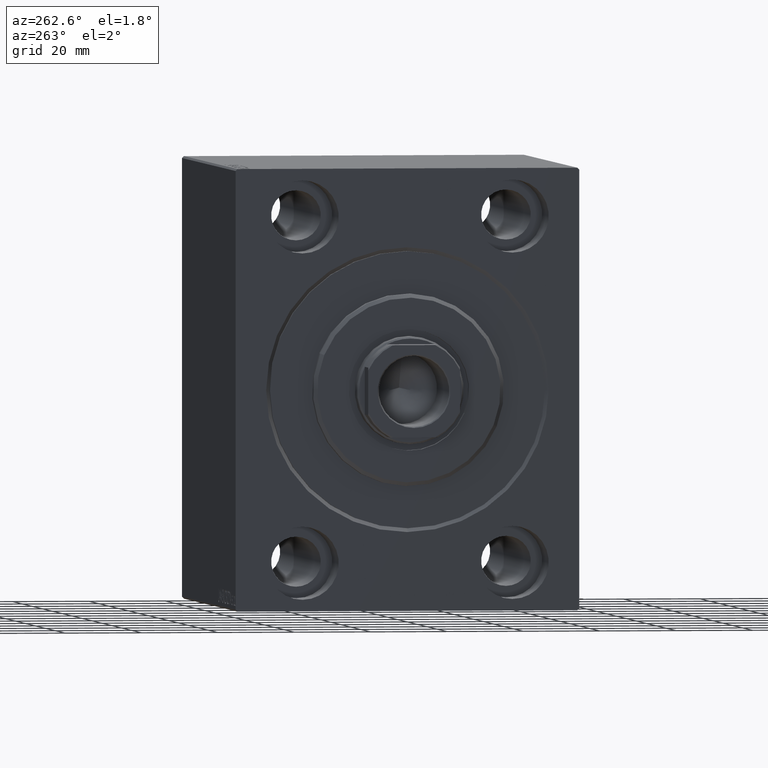
[diagram: clean part render]
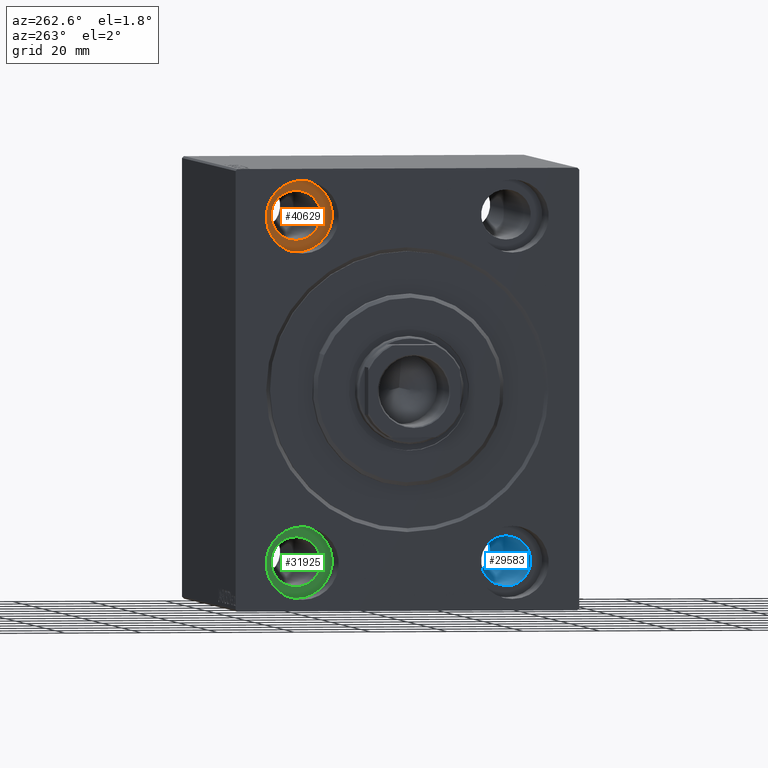
[diagram: same view with three faces highlighted in distinct colors, each labeled with its STEP entity id]
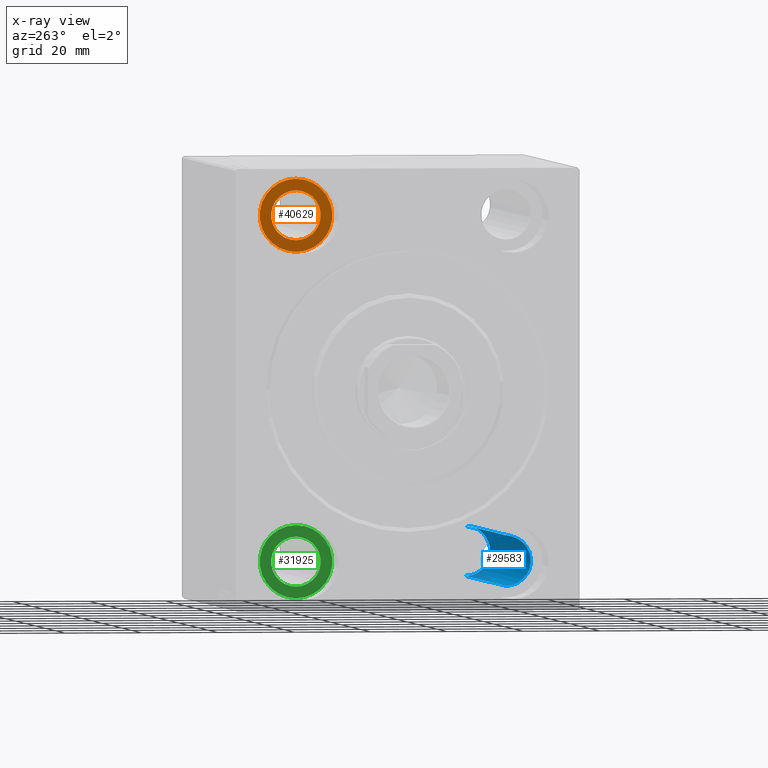
[diagram: x-ray of the same camera — body ghosted, the three highlighted faces saturated]
A machine part, auxiliary view with three faces highlighted in distinct colors.
The next image is the same camera in x-ray (body ghosted, the three faces saturated) — at least one of them is partly hidden behind the body in this view.
Their STEP definitions:

[orange] entity #40629 — the highlighted planar face has unit normal (-1, 0, 0).
#1296 = FACE_BOUND ( 'NONE', #27066, .T. ) ;
#1957 = DIRECTION ( 'NONE',  ( 0.000000000000000000, 0.000000000000000000, 1.000000000000000000 ) ) ;
#2302 = CARTESIAN_POINT ( 'NONE',  ( 12.99999999999999822, 27.50000000000001066, 38.50000000000000711 ) ) ;
#2378 = ORIENTED_EDGE ( 'NONE', *, *, #20117, .T. ) ;
#3224 = DIRECTION ( 'NONE',  ( 0.000000000000000000, 0.000000000000000000, 1.000000000000000000 ) ) ;
#3572 = ORIENTED_EDGE ( 'NONE', *, *, #24990, .F. ) ;
#5092 = EDGE_CURVE ( 'NONE', #15258, #36710, #12760, .T. ) ;
#5297 = PLANE ( 'NONE',  #34083 ) ;
#8473 = DIRECTION ( 'NONE',  ( 0.000000000000000000, 0.000000000000000000, 1.000000000000000000 ) ) ;
#9696 = DIRECTION ( 'NONE',  ( 0.000000000000000000, 0.000000000000000000, 1.000000000000000000 ) ) ;
#9836 = DIRECTION ( 'NONE',  ( 0.000000000000000000, 0.000000000000000000, 1.000000000000000000 ) ) ;
#11773 = CARTESIAN_POINT ( 'NONE',  ( 13.00000000000000000, 0.000000000000000000, 0.000000000000000000 ) ) ;
#11803 = VERTEX_POINT ( 'NONE', #2302 ) ;
#12760 = CIRCLE ( 'NONE', #21331, 9.500000000000001776 ) ;
#15258 = VERTEX_POINT ( 'NONE', #34511 ) ;
#17184 = DIRECTION ( 'NONE',  ( -1.000000000000000000, 0.000000000000000000, 0.000000000000000000 ) ) ;
#17287 = DIRECTION ( 'NONE',  ( -1.000000000000000000, 0.000000000000000000, 0.000000000000000000 ) ) ;
#17713 = AXIS2_PLACEMENT_3D ( 'NONE', #44008, #20178, #9696 ) ;
#18441 = ORIENTED_EDGE ( 'NONE', *, *, #39913, .F. ) ;
#18892 = AXIS2_PLACEMENT_3D ( 'NONE', #42350, #28755, #8473 ) ;
#18919 = DIRECTION ( 'NONE',  ( -1.000000000000000000, 0.000000000000000000, 0.000000000000000000 ) ) ;
#20117 = EDGE_CURVE ( 'NONE', #36710, #15258, #43708, .T. ) ;
#20178 = DIRECTION ( 'NONE',  ( -1.000000000000000000, 0.000000000000000000, 0.000000000000000000 ) ) ;
#21331 = AXIS2_PLACEMENT_3D ( 'NONE', #36918, #17287, #3224 ) ;
#23792 = AXIS2_PLACEMENT_3D ( 'NONE', #40383, #17184, #9836 ) ;
#24741 = EDGE_LOOP ( 'NONE', ( #27663, #2378 ) ) ;
#24990 = EDGE_CURVE ( 'NONE', #42682, #11803, #28113, .T. ) ;
#27066 = EDGE_LOOP ( 'NONE', ( #3572, #18441 ) ) ;
#27663 = ORIENTED_EDGE ( 'NONE', *, *, #5092, .T. ) ;
#28113 = CIRCLE ( 'NONE', #18892, 6.499999999999999112 ) ;
#28726 = FACE_OUTER_BOUND ( 'NONE', #24741, .T. ) ;
#28755 = DIRECTION ( 'NONE',  ( -1.000000000000000000, 0.000000000000000000, 0.000000000000000000 ) ) ;
#34083 = AXIS2_PLACEMENT_3D ( 'NONE', #11773, #18919, #1957 ) ;
#34511 = CARTESIAN_POINT ( 'NONE',  ( 13.00000000000000000, 27.50000000000001066, 54.50000000000000711 ) ) ;
#36710 = VERTEX_POINT ( 'NONE', #43432 ) ;
#36918 = CARTESIAN_POINT ( 'NONE',  ( 13.00000000000000000, 27.50000000000001066, 45.00000000000000711 ) ) ;
#36934 = CIRCLE ( 'NONE', #17713, 6.499999999999999112 ) ;
#39913 = EDGE_CURVE ( 'NONE', #11803, #42682, #36934, .T. ) ;
#40383 = CARTESIAN_POINT ( 'NONE',  ( 13.00000000000000000, 27.50000000000001066, 45.00000000000000711 ) ) ;
#40629 = ADVANCED_FACE ( 'NONE', ( #1296, #28726 ), #5297, .T. ) ;
#41526 = CARTESIAN_POINT ( 'NONE',  ( 12.99999999999999822, 27.50000000000001066, 51.50000000000000711 ) ) ;
#42350 = CARTESIAN_POINT ( 'NONE',  ( 12.99999999999999822, 27.50000000000001066, 45.00000000000000711 ) ) ;
#42682 = VERTEX_POINT ( 'NONE', #41526 ) ;
#43432 = CARTESIAN_POINT ( 'NONE',  ( 13.00000000000000000, 27.50000000000001066, 35.50000000000000711 ) ) ;
#43708 = CIRCLE ( 'NONE', #23792, 9.500000000000001776 ) ;
#44008 = CARTESIAN_POINT ( 'NONE',  ( 12.99999999999999822, 27.50000000000001066, 45.00000000000000711 ) ) ;

[blue] entity #29583 — the highlighted cylindrical surface (edge-blend (fillet) strip) has radius 6.5 mm, axis along (-1, -0, -0).
#840 = EDGE_CURVE ( 'NONE', #13338, #19094, #12283, .T. ) ;
#3586 = EDGE_CURVE ( 'NONE', #42145, #13338, #12695, .T. ) ;
#4233 = EDGE_CURVE ( 'NONE', #18553, #19094, #21296, .T. ) ;
#4687 = CARTESIAN_POINT ( 'NONE',  ( 108.0000000000000000, -27.50000000000000000, -38.49999999999998579 ) ) ;
#5581 = DIRECTION ( 'NONE',  ( -1.000000000000000000, -0.000000000000000000, -0.000000000000000000 ) ) ;
#5728 = CARTESIAN_POINT ( 'NONE',  ( 108.0000000000000000, -27.50000000000000000, -51.49999999999998579 ) ) ;
#5953 = FACE_OUTER_BOUND ( 'NONE', #31927, .T. ) ;
#6175 = CYLINDRICAL_SURFACE ( 'NONE', #36781, 6.499999999999999112 ) ;
#7412 = DIRECTION ( 'NONE',  ( -1.000000000000000000, -0.000000000000000000, -0.000000000000000000 ) ) ;
#7860 = CARTESIAN_POINT ( 'NONE',  ( 95.00000000000000000, -27.50000000000000000, -44.99999999999998579 ) ) ;
#8071 = DIRECTION ( 'NONE',  ( 0.000000000000000000, 0.000000000000000000, -1.000000000000000000 ) ) ;
#9086 = LINE ( 'NONE', #5728, #38998 ) ;
#9754 = CARTESIAN_POINT ( 'NONE',  ( 108.0000000000000000, -27.50000000000000000, -44.99999999999998579 ) ) ;
#10668 = DIRECTION ( 'NONE',  ( 0.000000000000000000, 0.000000000000000000, 1.000000000000000000 ) ) ;
#11892 = CARTESIAN_POINT ( 'NONE',  ( 12.99999999999999822, -27.50000000000000000, -51.49999999999998579 ) ) ;
#12283 = LINE ( 'NONE', #4687, #26893 ) ;
#12458 = CARTESIAN_POINT ( 'NONE',  ( 95.00000000000000000, -27.50000000000000000, -38.49999999999998579 ) ) ;
#12695 = CIRCLE ( 'NONE', #37614, 6.499999999999999112 ) ;
#13338 = VERTEX_POINT ( 'NONE', #12458 ) ;
#14761 = ORIENTED_EDGE ( 'NONE', *, *, #4233, .T. ) ;
#15585 = ORIENTED_EDGE ( 'NONE', *, *, #3586, .F. ) ;
#17102 = DIRECTION ( 'NONE',  ( 0.000000000000000000, 0.000000000000000000, 1.000000000000000000 ) ) ;
#18016 = CARTESIAN_POINT ( 'NONE',  ( 12.99999999999999822, -27.50000000000000000, -44.99999999999998579 ) ) ;
#18553 = VERTEX_POINT ( 'NONE', #11892 ) ;
#19094 = VERTEX_POINT ( 'NONE', #27034 ) ;
#21296 = CIRCLE ( 'NONE', #32675, 6.499999999999999112 ) ;
#22149 = ORIENTED_EDGE ( 'NONE', *, *, #840, .F. ) ;
#26491 = DIRECTION ( 'NONE',  ( -1.000000000000000000, -0.000000000000000000, -0.000000000000000000 ) ) ;
#26893 = VECTOR ( 'NONE', #5581, 1000.000000000000000 ) ;
#27034 = CARTESIAN_POINT ( 'NONE',  ( 12.99999999999999822, -27.50000000000000000, -38.49999999999998579 ) ) ;
#27482 = CARTESIAN_POINT ( 'NONE',  ( 95.00000000000000000, -27.50000000000000000, -51.49999999999998579 ) ) ;
#29583 = ADVANCED_FACE ( 'NONE', ( #5953 ), #6175, .F. ) ;
#31927 = EDGE_LOOP ( 'NONE', ( #15585, #43605, #14761, #22149 ) ) ;
#32675 = AXIS2_PLACEMENT_3D ( 'NONE', #18016, #37425, #10668 ) ;
#32718 = DIRECTION ( 'NONE',  ( -1.000000000000000000, -0.000000000000000000, -0.000000000000000000 ) ) ;
#36781 = AXIS2_PLACEMENT_3D ( 'NONE', #9754, #26491, #17102 ) ;
#37425 = DIRECTION ( 'NONE',  ( -1.000000000000000000, 0.000000000000000000, 0.000000000000000000 ) ) ;
#37614 = AXIS2_PLACEMENT_3D ( 'NONE', #7860, #7412, #8071 ) ;
#37874 = EDGE_CURVE ( 'NONE', #42145, #18553, #9086, .T. ) ;
#38998 = VECTOR ( 'NONE', #32718, 1000.000000000000000 ) ;
#42145 = VERTEX_POINT ( 'NONE', #27482 ) ;
#43605 = ORIENTED_EDGE ( 'NONE', *, *, #37874, .T. ) ;

[green] entity #31925 — the highlighted planar face has unit normal (-1, 0, 0).
#123 = DIRECTION ( 'NONE',  ( -1.000000000000000000, 0.000000000000000000, 0.000000000000000000 ) ) ;
#2445 = VERTEX_POINT ( 'NONE', #42014 ) ;
#3567 = DIRECTION ( 'NONE',  ( -1.000000000000000000, 0.000000000000000000, 0.000000000000000000 ) ) ;
#5316 = FACE_BOUND ( 'NONE', #27556, .T. ) ;
#5437 = DIRECTION ( 'NONE',  ( 0.000000000000000000, 0.000000000000000000, 1.000000000000000000 ) ) ;
#6204 = EDGE_CURVE ( 'NONE', #22915, #6422, #36238, .T. ) ;
#6422 = VERTEX_POINT ( 'NONE', #26424 ) ;
#6793 = CARTESIAN_POINT ( 'NONE',  ( 13.00000000000000000, 27.49999999999998934, -54.49999999999998579 ) ) ;
#7268 = CARTESIAN_POINT ( 'NONE',  ( 13.00000000000000000, 27.49999999999998934, -44.99999999999998579 ) ) ;
#8127 = CIRCLE ( 'NONE', #41585, 6.499999999999999112 ) ;
#8907 = VERTEX_POINT ( 'NONE', #18713 ) ;
#10049 = DIRECTION ( 'NONE',  ( 0.000000000000000000, 0.000000000000000000, 1.000000000000000000 ) ) ;
#11696 = DIRECTION ( 'NONE',  ( -1.000000000000000000, 0.000000000000000000, 0.000000000000000000 ) ) ;
#11830 = CIRCLE ( 'NONE', #42560, 9.500000000000001776 ) ;
#11914 = EDGE_LOOP ( 'NONE', ( #34637, #39073 ) ) ;
#12021 = CARTESIAN_POINT ( 'NONE',  ( 13.00000000000000000, 27.49999999999998934, -44.99999999999998579 ) ) ;
#15360 = DIRECTION ( 'NONE',  ( 0.000000000000000000, 0.000000000000000000, 1.000000000000000000 ) ) ;
#18713 = CARTESIAN_POINT ( 'NONE',  ( 12.99999999999999822, 27.49999999999998934, -38.49999999999998579 ) ) ;
#18864 = DIRECTION ( 'NONE',  ( -1.000000000000000000, 0.000000000000000000, 0.000000000000000000 ) ) ;
#18901 = CIRCLE ( 'NONE', #37385, 6.499999999999999112 ) ;
#20203 = EDGE_CURVE ( 'NONE', #2445, #8907, #8127, .T. ) ;
#20305 = CARTESIAN_POINT ( 'NONE',  ( 12.99999999999999822, 27.49999999999998934, -44.99999999999998579 ) ) ;
#21093 = DIRECTION ( 'NONE',  ( 0.000000000000000000, 0.000000000000000000, 1.000000000000000000 ) ) ;
#21983 = EDGE_CURVE ( 'NONE', #8907, #2445, #18901, .T. ) ;
#22355 = ORIENTED_EDGE ( 'NONE', *, *, #20203, .F. ) ;
#22430 = CARTESIAN_POINT ( 'NONE',  ( 12.99999999999999822, 27.49999999999998934, -44.99999999999998579 ) ) ;
#22739 = AXIS2_PLACEMENT_3D ( 'NONE', #7268, #123, #21093 ) ;
#22915 = VERTEX_POINT ( 'NONE', #6793 ) ;
#23101 = DIRECTION ( 'NONE',  ( 0.000000000000000000, 0.000000000000000000, 1.000000000000000000 ) ) ;
#25405 = FACE_OUTER_BOUND ( 'NONE', #11914, .T. ) ;
#26424 = CARTESIAN_POINT ( 'NONE',  ( 13.00000000000000000, 27.49999999999998934, -35.49999999999998579 ) ) ;
#27556 = EDGE_LOOP ( 'NONE', ( #41496, #22355 ) ) ;
#31925 = ADVANCED_FACE ( 'NONE', ( #5316, #25405 ), #32091, .T. ) ;
#32091 = PLANE ( 'NONE',  #43912 ) ;
#32426 = CARTESIAN_POINT ( 'NONE',  ( 13.00000000000000000, 27.49999999999998934, -44.99999999999998579 ) ) ;
#33333 = EDGE_CURVE ( 'NONE', #6422, #22915, #11830, .T. ) ;
#34637 = ORIENTED_EDGE ( 'NONE', *, *, #33333, .T. ) ;
#36238 = CIRCLE ( 'NONE', #22739, 9.500000000000001776 ) ;
#37385 = AXIS2_PLACEMENT_3D ( 'NONE', #22430, #18864, #23101 ) ;
#39073 = ORIENTED_EDGE ( 'NONE', *, *, #6204, .T. ) ;
#39453 = DIRECTION ( 'NONE',  ( -1.000000000000000000, 0.000000000000000000, 0.000000000000000000 ) ) ;
#41496 = ORIENTED_EDGE ( 'NONE', *, *, #21983, .F. ) ;
#41585 = AXIS2_PLACEMENT_3D ( 'NONE', #20305, #3567, #10049 ) ;
#42014 = CARTESIAN_POINT ( 'NONE',  ( 12.99999999999999822, 27.49999999999998934, -51.49999999999998579 ) ) ;
#42560 = AXIS2_PLACEMENT_3D ( 'NONE', #32426, #11696, #5437 ) ;
#43912 = AXIS2_PLACEMENT_3D ( 'NONE', #12021, #39453, #15360 ) ;